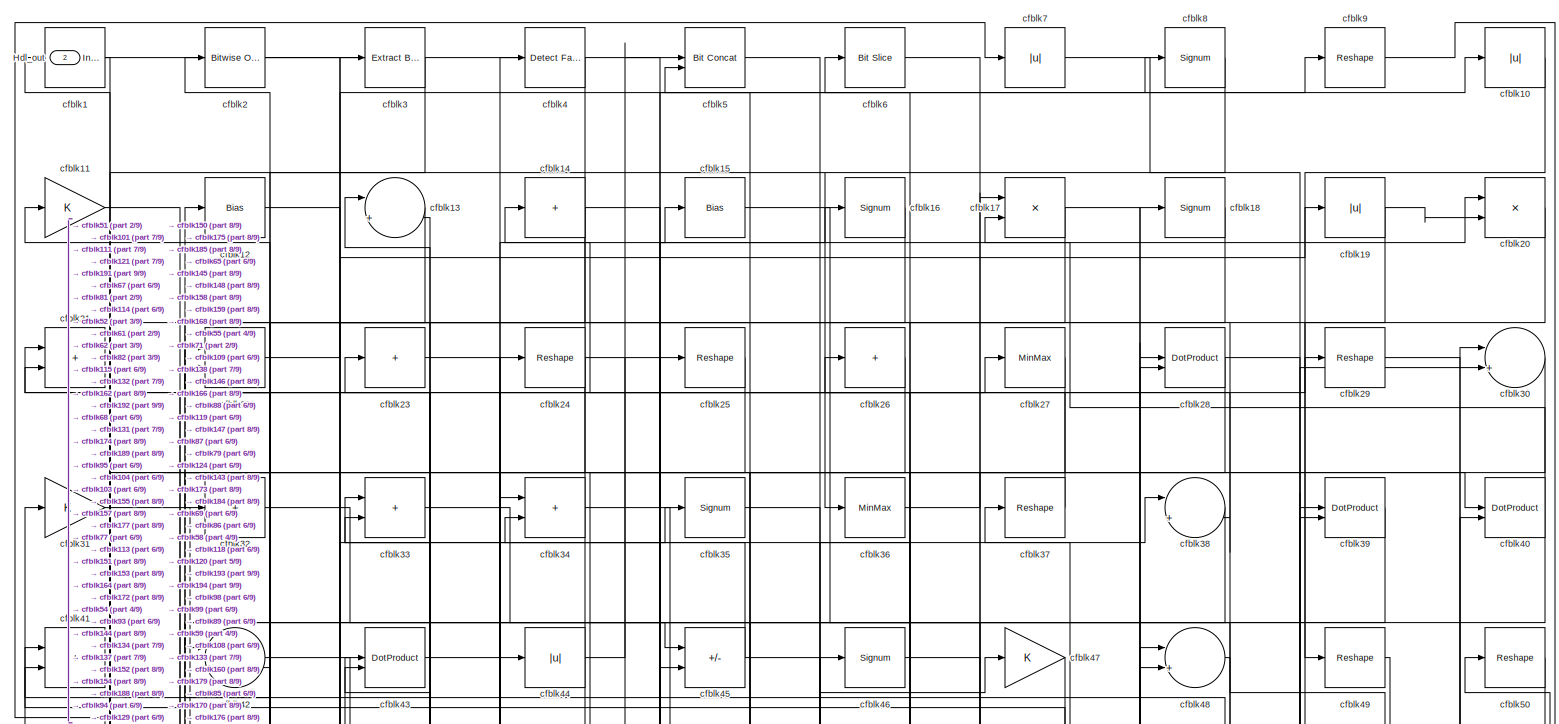
[diagram: root canvas - part 1/9, full width, top band]
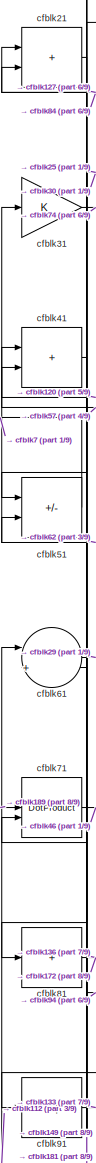
[diagram: root canvas - part 2/9, top left region]
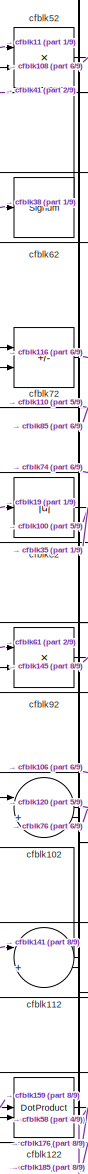
[diagram: root canvas - part 3/9, middle left region]
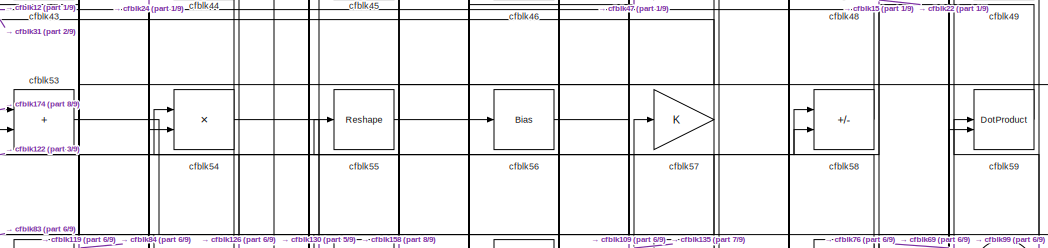
[diagram: root canvas - part 4/9, top center region]
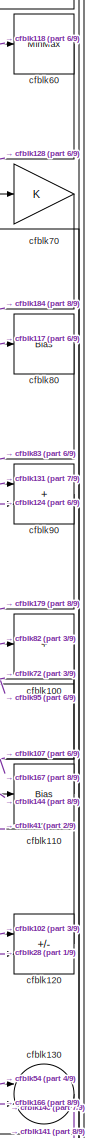
[diagram: root canvas - part 5/9, middle right region]
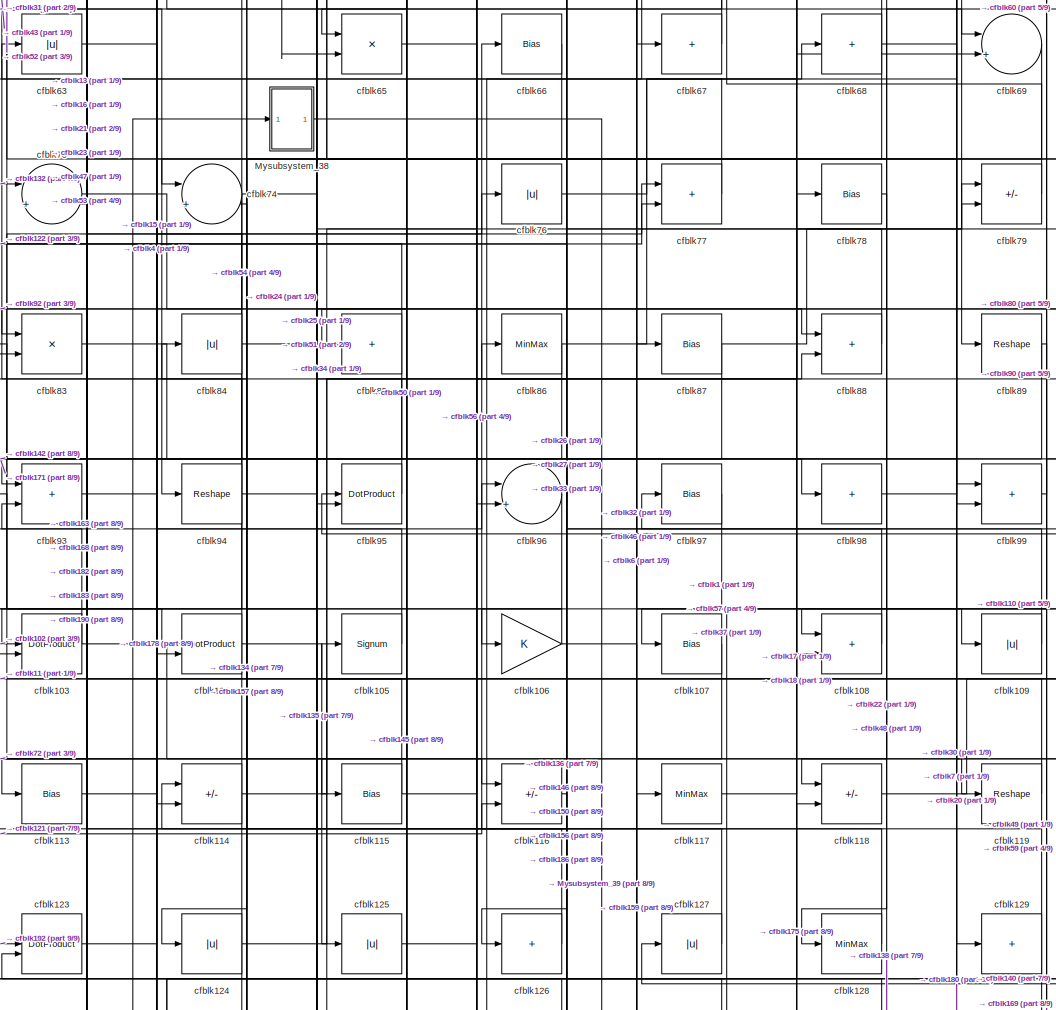
[diagram: root canvas - part 6/9, central region]
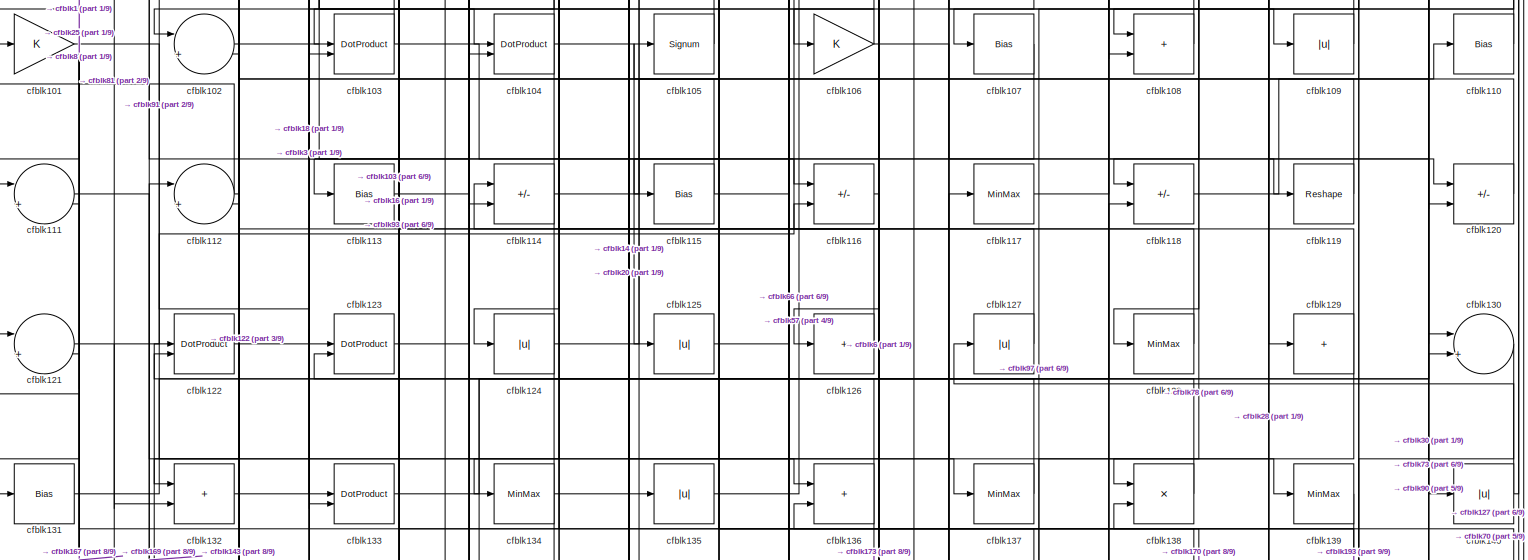
[diagram: root canvas - part 7/9, full width, middle band]
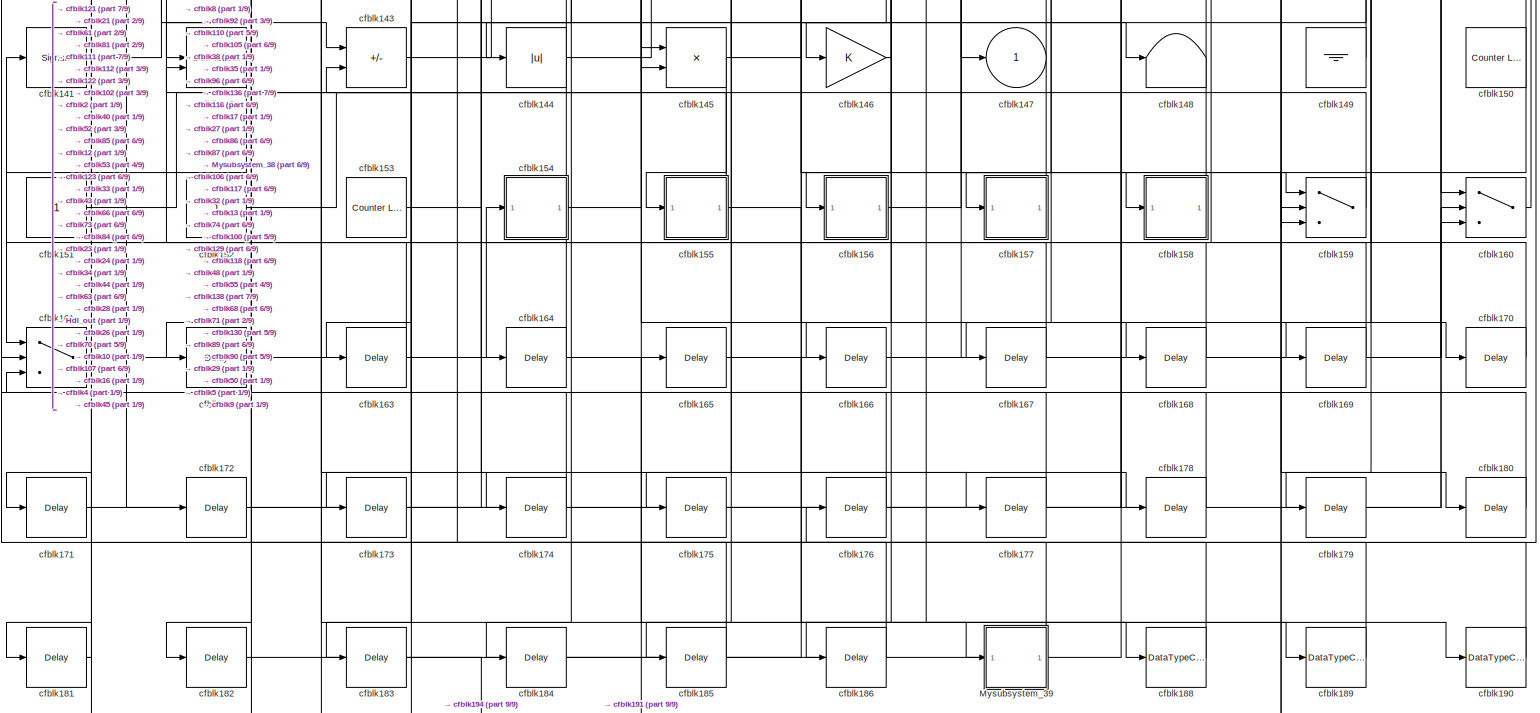
[diagram: root canvas - part 8/9, full width, bottom band]
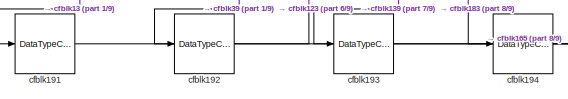
[diagram: root canvas - part 9/9, bottom left region]
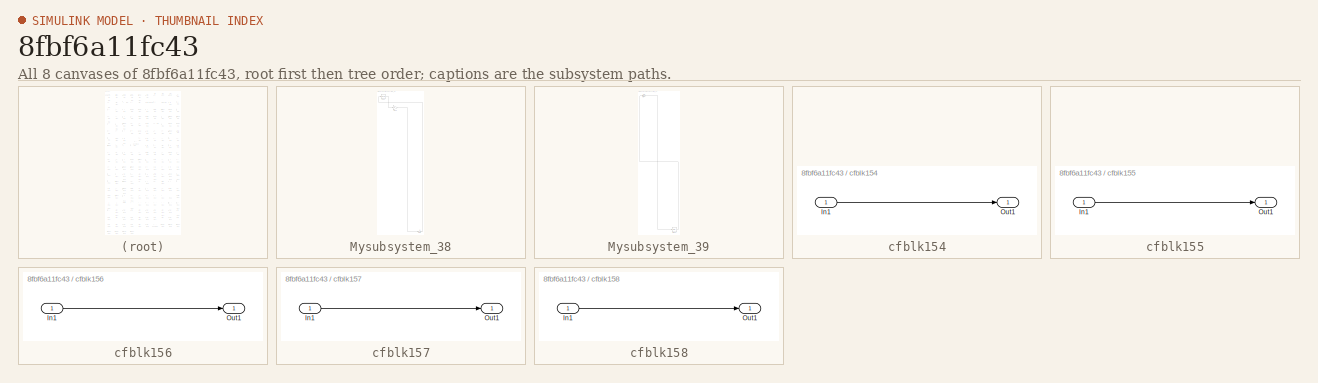
[diagram: thumbnail index - all 8 canvases of the model, root first then tree order]
MODEL slx_8fbf6a11fc43
KIND model
CONFIG AbsTol = auto
CONFIG EnableMultiTasking = off
CONFIG FixedStep = auto
CONFIG MaxStep = auto
CONFIG MinStep = auto
CONFIG RelTol = 1e-3
CONFIG SampleTimeConstraint = Unconstrained
CONFIG SolverName = VariableStepAuto
CONFIG StartTime = 0.0
CONFIG StopTime = 10.0
BLOCK [Outport] Hdl_out
  OutDataTypeStr = uint8
  Port = 2
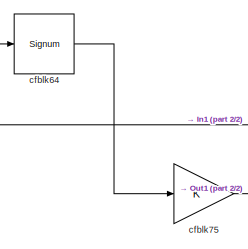
[diagram: Mysubsystem_38 - part 1/2, top left region]
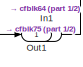
[diagram: Mysubsystem_38 - part 2/2, bottom right region]
BLOCK [SubSystem] Mysubsystem_38
  RTWFcnName = Mysubsystem_38
  RTWFcnNameOpts = User specified
  RTWFileNameOpts = Use function name
  RTWSystemCode = Reusable function
  TreatAsAtomicUnit = on
BLOCK [Inport] Mysubsystem_38/In1
BLOCK [Outport] Mysubsystem_38/Out1
BLOCK [Signum] Mysubsystem_38/cfblk64
BLOCK [Gain] Mysubsystem_38/cfblk75
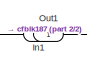
[diagram: Mysubsystem_39 - part 1/2, top left region]
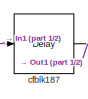
[diagram: Mysubsystem_39 - part 2/2, bottom right region]
BLOCK [SubSystem] Mysubsystem_39
  RTWFcnName = Mysubsystem_39
  RTWFcnNameOpts = User specified
  RTWFileNameOpts = Use function name
  RTWSystemCode = Reusable function
  TreatAsAtomicUnit = on
BLOCK [Inport] Mysubsystem_39/In1
BLOCK [Outport] Mysubsystem_39/Out1
BLOCK [Delay] Mysubsystem_39/cfblk187
  InputPortMap = u0
  SampleTime = 1
BLOCK [Reference] cfblk1  REF=simulink/Logic and Bit
Operations/Detect
Increase
  LibrarySourceBlock = hdlsllib/Logic and Bit\nOperations/Detect\nIncrease
  SourceBlock = simulink/Logic and Bit\nOperations/Detect\nIncrease
  SourceType = Detect Increase
BLOCK [Abs] cfblk10
  OutDataTypeStr = uint8
  SaturateOnIntegerOverflow = off
BLOCK [Sum] cfblk100
  IconShape = rectangular
  Inputs = +
  OutDataTypeStr = uint8
BLOCK [Gain] cfblk101
  OutDataTypeStr = uint8
BLOCK [Sum] cfblk102
  Inputs = |++
  OutDataTypeStr = uint8
BLOCK [DotProduct] cfblk103
  OutDataTypeStr = uint8
BLOCK [DotProduct] cfblk104
  OutDataTypeStr = uint8
BLOCK [Signum] cfblk105
BLOCK [Gain] cfblk106
  OutDataTypeStr = uint8
BLOCK [Bias] cfblk107
  Bias = 0.0
  SaturateOnIntegerOverflow = off
BLOCK [Sum] cfblk108
  IconShape = rectangular
  OutDataTypeStr = uint8
BLOCK [Abs] cfblk109
  OutDataTypeStr = uint8
  SaturateOnIntegerOverflow = off
BLOCK [Gain] cfblk11
  OutDataTypeStr = uint8
BLOCK [Bias] cfblk110
  Bias = 0.0
  SaturateOnIntegerOverflow = off
BLOCK [Sum] cfblk111
  Inputs = |++
  OutDataTypeStr = uint8
BLOCK [Sum] cfblk112
  Inputs = |++
  OutDataTypeStr = uint8
BLOCK [Bias] cfblk113
  Bias = 0.0
  SaturateOnIntegerOverflow = off
BLOCK [Sum] cfblk114
  IconShape = rectangular
  Inputs = +-
  OutDataTypeStr = uint8
BLOCK [Bias] cfblk115
  Bias = 0.0
  SaturateOnIntegerOverflow = off
BLOCK [Sum] cfblk116
  IconShape = rectangular
  Inputs = +-
  OutDataTypeStr = uint8
BLOCK [MinMax] cfblk117
  OutDataTypeStr = uint8
BLOCK [Sum] cfblk118
  IconShape = rectangular
  Inputs = +-
  OutDataTypeStr = uint8
BLOCK [Reshape] cfblk119
BLOCK [Bias] cfblk12
  Bias = 0.0
  SaturateOnIntegerOverflow = off
BLOCK [Sum] cfblk120
  IconShape = rectangular
  Inputs = +-
  OutDataTypeStr = uint8
BLOCK [Sum] cfblk121
  Inputs = |++
  OutDataTypeStr = uint8
BLOCK [DotProduct] cfblk122
  OutDataTypeStr = uint8
BLOCK [DotProduct] cfblk123
  OutDataTypeStr = uint8
BLOCK [Abs] cfblk124
  OutDataTypeStr = uint8
  SaturateOnIntegerOverflow = off
BLOCK [Abs] cfblk125
  OutDataTypeStr = uint8
  SaturateOnIntegerOverflow = off
BLOCK [Sum] cfblk126
  IconShape = rectangular
  Inputs = +
  OutDataTypeStr = uint8
BLOCK [Abs] cfblk127
  OutDataTypeStr = uint8
  SaturateOnIntegerOverflow = off
BLOCK [MinMax] cfblk128
  OutDataTypeStr = uint8
BLOCK [Sum] cfblk129
  IconShape = rectangular
  Inputs = +
  OutDataTypeStr = uint8
BLOCK [Sum] cfblk13
  Inputs = |++
  OutDataTypeStr = uint8
BLOCK [Sum] cfblk130
  Inputs = |++
  OutDataTypeStr = uint8
BLOCK [Bias] cfblk131
  Bias = 0.0
  SaturateOnIntegerOverflow = off
BLOCK [Sum] cfblk132
  IconShape = rectangular
  OutDataTypeStr = uint8
BLOCK [DotProduct] cfblk133
  OutDataTypeStr = uint8
BLOCK [MinMax] cfblk134
  OutDataTypeStr = uint8
BLOCK [Abs] cfblk135
  OutDataTypeStr = uint8
  SaturateOnIntegerOverflow = off
BLOCK [Sum] cfblk136
  IconShape = rectangular
  OutDataTypeStr = uint8
BLOCK [MinMax] cfblk137
  OutDataTypeStr = uint8
BLOCK [Product] cfblk138
  Inputs = */
  OutDataTypeStr = uint8
  RndMeth = Zero
  SaturateOnIntegerOverflow = on
BLOCK [MinMax] cfblk139
  OutDataTypeStr = uint8
BLOCK [Sum] cfblk14
  IconShape = rectangular
  Inputs = +
  OutDataTypeStr = uint8
BLOCK [Abs] cfblk140
  OutDataTypeStr = uint8
  SaturateOnIntegerOverflow = off
BLOCK [Signum] cfblk141
BLOCK [DotProduct] cfblk142
  OutDataTypeStr = uint8
BLOCK [Sum] cfblk143
  IconShape = rectangular
  Inputs = +-
  OutDataTypeStr = uint8
BLOCK [Abs] cfblk144
  OutDataTypeStr = uint8
  SaturateOnIntegerOverflow = off
BLOCK [Product] cfblk145
  Inputs = */
  OutDataTypeStr = uint8
  RndMeth = Zero
  SaturateOnIntegerOverflow = on
BLOCK [Gain] cfblk146
  OutDataTypeStr = uint8
BLOCK [Outport] cfblk147
  OutDataTypeStr = uint8
  VectorParamsAs1DForOutWhenUnconnected = off
BLOCK [Terminator] cfblk148
BLOCK [Ground] cfblk149
BLOCK [Bias] cfblk15
  Bias = 0.0
  SaturateOnIntegerOverflow = off
BLOCK [Reference] cfblk150  REF=hdlsllib/Sources/Counter
Limited
  SourceBlock = hdlsllib/Sources/Counter\nLimited
  SourceType = Counter Limited
BLOCK [Constant] cfblk151
  OutDataTypeStr = uint8
  SampleTime = -1
BLOCK [Constant] cfblk152
  OutDataTypeStr = uint8
  SampleTime = -1
BLOCK [Reference] cfblk153  REF=hdlsllib/Sources/Counter
Limited
  SourceBlock = hdlsllib/Sources/Counter\nLimited
  SourceType = Counter Limited
BLOCK [SubSystem] cfblk154
  LibrarySourceBlock = hdlsllib/Ports &\nSubsystems/Subsystem
BLOCK [Inport] cfblk154/In1
BLOCK [Outport] cfblk154/Out1
BLOCK [SubSystem] cfblk155
  LibrarySourceBlock = hdlsllib/Ports &\nSubsystems/Subsystem
BLOCK [Inport] cfblk155/In1
BLOCK [Outport] cfblk155/Out1
BLOCK [SubSystem] cfblk156
  LibrarySourceBlock = hdlsllib/Ports &\nSubsystems/Subsystem
BLOCK [Inport] cfblk156/In1
BLOCK [Outport] cfblk156/Out1
BLOCK [SubSystem] cfblk157
  LibrarySourceBlock = hdlsllib/Ports &\nSubsystems/Subsystem
BLOCK [Inport] cfblk157/In1
BLOCK [Outport] cfblk157/Out1
BLOCK [SubSystem] cfblk158
  LibrarySourceBlock = hdlsllib/Ports &\nSubsystems/Subsystem
BLOCK [Inport] cfblk158/In1
BLOCK [Outport] cfblk158/Out1
BLOCK [Switch] cfblk159
  InputSameDT = off
  OutDataTypeStr = uint8
  SaturateOnIntegerOverflow = off
BLOCK [Signum] cfblk16
BLOCK [Switch] cfblk160
  InputSameDT = off
  OutDataTypeStr = uint8
  SaturateOnIntegerOverflow = off
BLOCK [Switch] cfblk161
  InputSameDT = off
  OutDataTypeStr = uint8
  SaturateOnIntegerOverflow = off
BLOCK [Delay] cfblk162
  InputPortMap = u0
  SampleTime = 1
BLOCK [Delay] cfblk163
  InputPortMap = u0
  SampleTime = 1
BLOCK [Delay] cfblk164
  InputPortMap = u0
  SampleTime = 1
BLOCK [Delay] cfblk165
  InputPortMap = u0
  SampleTime = 1
BLOCK [Delay] cfblk166
  InputPortMap = u0
  SampleTime = 1
BLOCK [Delay] cfblk167
  InputPortMap = u0
  SampleTime = 1
BLOCK [Delay] cfblk168
  InputPortMap = u0
  SampleTime = 1
BLOCK [Delay] cfblk169
  InputPortMap = u0
  SampleTime = 1
BLOCK [Product] cfblk17
  Inputs = */
  OutDataTypeStr = uint8
  RndMeth = Zero
  SaturateOnIntegerOverflow = on
BLOCK [Delay] cfblk170
  InputPortMap = u0
  SampleTime = 1
BLOCK [Delay] cfblk171
  InputPortMap = u0
  SampleTime = 1
BLOCK [Delay] cfblk172
  InputPortMap = u0
  SampleTime = 1
BLOCK [Delay] cfblk173
  InputPortMap = u0
  SampleTime = 1
BLOCK [Delay] cfblk174
  InputPortMap = u0
  SampleTime = 1
BLOCK [Delay] cfblk175
  InputPortMap = u0
  SampleTime = 1
BLOCK [Delay] cfblk176
  InputPortMap = u0
  SampleTime = 1
BLOCK [Delay] cfblk177
  InputPortMap = u0
  SampleTime = 1
BLOCK [Delay] cfblk178
  InputPortMap = u0
  SampleTime = 1
BLOCK [Delay] cfblk179
  InputPortMap = u0
  SampleTime = 1
BLOCK [Signum] cfblk18
BLOCK [Delay] cfblk180
  InputPortMap = u0
  SampleTime = 1
BLOCK [Delay] cfblk181
  InputPortMap = u0
  SampleTime = 1
BLOCK [Delay] cfblk182
  InputPortMap = u0
  SampleTime = 1
BLOCK [Delay] cfblk183
  InputPortMap = u0
  SampleTime = 1
BLOCK [Delay] cfblk184
  InputPortMap = u0
  SampleTime = 1
BLOCK [Delay] cfblk185
  InputPortMap = u0
  SampleTime = 1
BLOCK [Delay] cfblk186
  InputPortMap = u0
  SampleTime = 1
BLOCK [DataTypeConversion] cfblk188
  OutDataTypeStr = uint8
  RndMeth = Floor
  SaturateOnIntegerOverflow = off
BLOCK [DataTypeConversion] cfblk189
  OutDataTypeStr = uint8
  RndMeth = Floor
  SaturateOnIntegerOverflow = off
BLOCK [Abs] cfblk19
  OutDataTypeStr = uint8
  SaturateOnIntegerOverflow = off
BLOCK [DataTypeConversion] cfblk190
  OutDataTypeStr = uint8
  RndMeth = Floor
  SaturateOnIntegerOverflow = off
BLOCK [DataTypeConversion] cfblk191
  OutDataTypeStr = uint8
  RndMeth = Floor
  SaturateOnIntegerOverflow = off
BLOCK [DataTypeConversion] cfblk192
  OutDataTypeStr = uint8
  RndMeth = Floor
  SaturateOnIntegerOverflow = off
BLOCK [DataTypeConversion] cfblk193
  OutDataTypeStr = uint8
  RndMeth = Floor
  SaturateOnIntegerOverflow = off
BLOCK [DataTypeConversion] cfblk194
  OutDataTypeStr = uint8
  RndMeth = Floor
  SaturateOnIntegerOverflow = off
BLOCK [Reference] cfblk2  REF=simulink/Logic and Bit
Operations/Bitwise
Operator
  LibrarySourceBlock = hdlsllib/Logic and Bit\nOperations/Bitwise\nOperator
  SourceBlock = simulink/Logic and Bit\nOperations/Bitwise\nOperator
  SourceType = Bitwise Operator
BLOCK [Product] cfblk20
  Inputs = */
  OutDataTypeStr = uint8
  RndMeth = Zero
  SaturateOnIntegerOverflow = on
BLOCK [Sum] cfblk21
  IconShape = rectangular
  OutDataTypeStr = uint8
BLOCK [Sum] cfblk22
  IconShape = rectangular
  OutDataTypeStr = uint8
BLOCK [Sum] cfblk23
  IconShape = rectangular
  Inputs = +
  OutDataTypeStr = uint8
BLOCK [Reshape] cfblk24
BLOCK [Reshape] cfblk25
BLOCK [Sum] cfblk26
  IconShape = rectangular
  Inputs = +
  OutDataTypeStr = uint8
BLOCK [MinMax] cfblk27
  OutDataTypeStr = uint8
BLOCK [DotProduct] cfblk28
  OutDataTypeStr = uint8
BLOCK [Reshape] cfblk29
BLOCK [Reference] cfblk3  REF=simulink/Logic and Bit
Operations/Extract Bits
  LibrarySourceBlock = hdlsllib/Logic and Bit\nOperations/Extract Bits
  SourceBlock = simulink/Logic and Bit\nOperations/Extract Bits
  SourceType = Extract Bits
BLOCK [Sum] cfblk30
  Inputs = |++
  OutDataTypeStr = uint8
BLOCK [Gain] cfblk31
  OutDataTypeStr = uint8
BLOCK [Sum] cfblk32
  IconShape = rectangular
  Inputs = +
  OutDataTypeStr = uint8
BLOCK [Sum] cfblk33
  IconShape = rectangular
  OutDataTypeStr = uint8
BLOCK [Sum] cfblk34
  IconShape = rectangular
  OutDataTypeStr = uint8
BLOCK [Signum] cfblk35
BLOCK [MinMax] cfblk36
  OutDataTypeStr = uint8
BLOCK [Reshape] cfblk37
BLOCK [Sum] cfblk38
  Inputs = |++
  OutDataTypeStr = uint8
BLOCK [DotProduct] cfblk39
  OutDataTypeStr = uint8
BLOCK [Reference] cfblk4  REF=hdlsllib/Logic and Bit
Operations/Detect Fall
Nonpositive
  SourceBlock = hdlsllib/Logic and Bit\nOperations/Detect Fall\nNonpositive
  SourceType = Detect Fall Nonpositive
BLOCK [DotProduct] cfblk40
  OutDataTypeStr = uint8
BLOCK [Sum] cfblk41
  IconShape = rectangular
  OutDataTypeStr = uint8
BLOCK [Sum] cfblk42
  Inputs = |++
  OutDataTypeStr = uint8
BLOCK [DotProduct] cfblk43
  OutDataTypeStr = uint8
BLOCK [Abs] cfblk44
  OutDataTypeStr = uint8
  SaturateOnIntegerOverflow = off
BLOCK [Sum] cfblk45
  IconShape = rectangular
  Inputs = +-
  OutDataTypeStr = uint8
BLOCK [Signum] cfblk46
BLOCK [Gain] cfblk47
  OutDataTypeStr = uint8
BLOCK [Sum] cfblk48
  Inputs = |++
  OutDataTypeStr = uint8
BLOCK [Reshape] cfblk49
BLOCK [Reference] cfblk5  REF=hdlsllib/Logic and Bit
Operations/Bit Concat
  SourceBlock = hdlsllib/Logic and Bit\nOperations/Bit Concat
  SourceType = Bit Concat
BLOCK [Reshape] cfblk50
BLOCK [Sum] cfblk51
  IconShape = rectangular
  Inputs = +-
  OutDataTypeStr = uint8
BLOCK [Product] cfblk52
  Inputs = */
  OutDataTypeStr = uint8
  RndMeth = Zero
  SaturateOnIntegerOverflow = on
BLOCK [Sum] cfblk53
  IconShape = rectangular
  OutDataTypeStr = uint8
BLOCK [Product] cfblk54
  Inputs = */
  OutDataTypeStr = uint8
  RndMeth = Zero
  SaturateOnIntegerOverflow = on
BLOCK [Reshape] cfblk55
BLOCK [Bias] cfblk56
  Bias = 0.0
  SaturateOnIntegerOverflow = off
BLOCK [Gain] cfblk57
  OutDataTypeStr = uint8
BLOCK [Sum] cfblk58
  IconShape = rectangular
  Inputs = +-
  OutDataTypeStr = uint8
BLOCK [DotProduct] cfblk59
  OutDataTypeStr = uint8
BLOCK [Reference] cfblk6  REF=hdlsllib/Logic and Bit
Operations/Bit Slice
  SourceBlock = hdlsllib/Logic and Bit\nOperations/Bit Slice
  SourceType = Bit Slice
BLOCK [MinMax] cfblk60
  OutDataTypeStr = uint8
BLOCK [Sum] cfblk61
  Inputs = |++
  OutDataTypeStr = uint8
BLOCK [Signum] cfblk62
BLOCK [Abs] cfblk63
  OutDataTypeStr = uint8
  SaturateOnIntegerOverflow = off
BLOCK [Product] cfblk65
  Inputs = */
  OutDataTypeStr = uint8
  RndMeth = Zero
  SaturateOnIntegerOverflow = on
BLOCK [Bias] cfblk66
  Bias = 0.0
  SaturateOnIntegerOverflow = off
BLOCK [Sum] cfblk67
  IconShape = rectangular
  Inputs = +
  OutDataTypeStr = uint8
BLOCK [Sum] cfblk68
  IconShape = rectangular
  Inputs = +
  OutDataTypeStr = uint8
BLOCK [Sum] cfblk69
  Inputs = |++
  OutDataTypeStr = uint8
BLOCK [Abs] cfblk7
  OutDataTypeStr = uint8
  SaturateOnIntegerOverflow = off
BLOCK [Gain] cfblk70
  OutDataTypeStr = uint8
BLOCK [DotProduct] cfblk71
  OutDataTypeStr = uint8
BLOCK [Sum] cfblk72
  IconShape = rectangular
  Inputs = +-
  OutDataTypeStr = uint8
BLOCK [Sum] cfblk73
  Inputs = |++
  OutDataTypeStr = uint8
BLOCK [Sum] cfblk74
  Inputs = |++
  OutDataTypeStr = uint8
BLOCK [Abs] cfblk76
  OutDataTypeStr = uint8
  SaturateOnIntegerOverflow = off
BLOCK [Sum] cfblk77
  IconShape = rectangular
  OutDataTypeStr = uint8
BLOCK [Bias] cfblk78
  Bias = 0.0
  SaturateOnIntegerOverflow = off
BLOCK [Sum] cfblk79
  IconShape = rectangular
  Inputs = +-
  OutDataTypeStr = uint8
BLOCK [Signum] cfblk8
BLOCK [Bias] cfblk80
  Bias = 0.0
  SaturateOnIntegerOverflow = off
BLOCK [Sum] cfblk81
  IconShape = rectangular
  Inputs = +
  OutDataTypeStr = uint8
BLOCK [Abs] cfblk82
  OutDataTypeStr = uint8
  SaturateOnIntegerOverflow = off
BLOCK [Product] cfblk83
  Inputs = */
  OutDataTypeStr = uint8
  RndMeth = Zero
  SaturateOnIntegerOverflow = on
BLOCK [Abs] cfblk84
  OutDataTypeStr = uint8
  SaturateOnIntegerOverflow = off
BLOCK [Sum] cfblk85
  IconShape = rectangular
  Inputs = +
  OutDataTypeStr = uint8
BLOCK [MinMax] cfblk86
  OutDataTypeStr = uint8
BLOCK [Bias] cfblk87
  Bias = 0.0
  SaturateOnIntegerOverflow = off
BLOCK [Sum] cfblk88
  IconShape = rectangular
  OutDataTypeStr = uint8
BLOCK [Reshape] cfblk89
BLOCK [Reshape] cfblk9
BLOCK [Sum] cfblk90
  IconShape = rectangular
  OutDataTypeStr = uint8
BLOCK [Abs] cfblk91
  OutDataTypeStr = uint8
  SaturateOnIntegerOverflow = off
BLOCK [Product] cfblk92
  Inputs = */
  OutDataTypeStr = uint8
  RndMeth = Zero
  SaturateOnIntegerOverflow = on
BLOCK [Sum] cfblk93
  IconShape = rectangular
  OutDataTypeStr = uint8
BLOCK [Reshape] cfblk94
BLOCK [DotProduct] cfblk95
  OutDataTypeStr = uint8
BLOCK [Sum] cfblk96
  Inputs = |++
  OutDataTypeStr = uint8
BLOCK [Bias] cfblk97
  Bias = 0.0
  SaturateOnIntegerOverflow = off
BLOCK [Sum] cfblk98
  IconShape = rectangular
  Inputs = +
  OutDataTypeStr = uint8
BLOCK [Sum] cfblk99
  IconShape = rectangular
  OutDataTypeStr = uint8
LINE Mysubsystem_38/In1:1 -> Mysubsystem_38/cfblk64:1
LINE Mysubsystem_38/cfblk64:1 -> Mysubsystem_38/cfblk75:1
LINE Mysubsystem_38/cfblk75:1 -> Mysubsystem_38/Out1:1
LINE Mysubsystem_38:1 -> Mysubsystem_39:1
LINE Mysubsystem_39/In1:1 -> Mysubsystem_39/cfblk187:1
LINE Mysubsystem_39/cfblk187:1 -> Mysubsystem_39/Out1:1
LINE Mysubsystem_39:1 -> Mysubsystem_38:1
LINE cfblk100:1 -> cfblk167:1
LINE cfblk101:1 -> cfblk139:1
NET cfblk102:1 -> cfblk120:1, cfblk76:1
NET cfblk103:1 -> cfblk135:1, cfblk42:2
LINE cfblk104:1 -> cfblk125:1
LINE cfblk105:1 -> cfblk63:1
NET cfblk106:1 -> cfblk102:1, cfblk159:3
LINE cfblk107:1 -> cfblk145:2
LINE cfblk108:1 -> cfblk97:1
LINE cfblk109:1 -> cfblk33:1
LINE cfblk10:1 -> cfblk49:1
NET cfblk110:1 -> cfblk107:1, cfblk72:2, cfblk95:1
LINE cfblk111:1 -> cfblk143:1
NET cfblk112:1 -> cfblk61:1, cfblk92:1
LINE cfblk113:1 -> cfblk4:1
LINE cfblk114:1 -> cfblk78:1
NET cfblk115:1 -> cfblk11:1, cfblk88:2
LINE cfblk116:1 -> cfblk156:1
LINE cfblk117:1 -> cfblk80:1
LINE cfblk118:1 -> cfblk60:1
LINE cfblk119:1 -> cfblk53:2
NET cfblk11:1 -> cfblk114:2, cfblk52:1
LINE cfblk120:1 -> cfblk41:1
NET cfblk121:1 -> cfblk132:2, cfblk66:1
NET cfblk122:1 -> cfblk58:2, cfblk77:1
LINE cfblk123:1 -> cfblk96:1
NET cfblk124:1 -> cfblk18:1, cfblk90:2
LINE cfblk125:1 -> cfblk68:1
LINE cfblk126:1 -> cfblk54:1
NET cfblk127:1 -> cfblk21:1, cfblk84:1
LINE cfblk128:1 -> cfblk114:1
NET cfblk129:1 -> cfblk157:1, cfblk23:1
LINE cfblk12:1 -> cfblk174:1
LINE cfblk130:1 -> cfblk141:1
NET cfblk131:1 -> cfblk3:1, cfblk90:1
LINE cfblk132:1 -> cfblk73:1
LINE cfblk133:1 -> cfblk30:1
LINE cfblk134:1 -> cfblk20:1
LINE cfblk135:1 -> cfblk57:1
NET cfblk136:1 -> cfblk173:1, cfblk93:2
LINE cfblk137:1 -> cfblk122:2
LINE cfblk138:1 -> cfblk6:1
NET cfblk139:1 -> cfblk136:2, cfblk193:1
LINE cfblk13:1 -> cfblk191:1
NET cfblk140:1 -> cfblk127:1, cfblk70:1
LINE cfblk141:1 -> cfblk112:1
NET cfblk142:1 -> cfblk161:1, cfblk52:2
LINE cfblk143:1 -> cfblk28:1
LINE cfblk144:1 -> cfblk110:1
NET cfblk145:1 -> cfblk105:1, cfblk155:1, cfblk38:1
LINE cfblk146:1 -> cfblk86:1
LINE cfblk149:1 -> cfblk71:2
NET cfblk14:1 -> cfblk137:1, cfblk42:1
NET cfblk150:1 -> cfblk116:2, cfblk159:2, cfblk5:2
LINE cfblk151:1 -> cfblk24:1
LINE cfblk152:1 -> cfblk45:2
LINE cfblk153:1 -> cfblk44:1
LINE cfblk154/In1:1 -> cfblk154/Out1:1
NET cfblk154:1 -> cfblk10:1, cfblk16:1, cfblk8:1
LINE cfblk155/In1:1 -> cfblk155/Out1:1
NET cfblk155:1 -> cfblk177:1, cfblk43:2
LINE cfblk156/In1:1 -> cfblk156/Out1:1
LINE cfblk156:1 -> cfblk117:1
LINE cfblk157/In1:1 -> cfblk157/Out1:1
NET cfblk157:1 -> cfblk13:1, cfblk74:2
LINE cfblk158/In1:1 -> cfblk158/Out1:1
LINE cfblk158:1 -> cfblk55:1
LINE cfblk159:1 -> cfblk122:1
LINE cfblk15:1 -> cfblk58:1
LINE cfblk160:1 -> cfblk50:1
LINE cfblk161:1 -> cfblk154:1
LINE cfblk162:1 -> cfblk160:2
LINE cfblk163:1 -> cfblk142:2
NET cfblk164:1 -> Hdl_out:1, cfblk17:1
LINE cfblk165:1 -> cfblk190:1
LINE cfblk166:1 -> cfblk130:2
LINE cfblk167:1 -> cfblk111:2
LINE cfblk168:1 -> cfblk73:2
LINE cfblk169:1 -> cfblk121:1
NET cfblk16:1 -> cfblk103:1, cfblk132:1
LINE cfblk170:1 -> cfblk138:2
LINE cfblk171:1 -> cfblk160:3
LINE cfblk172:1 -> cfblk34:1
LINE cfblk173:1 -> cfblk28:2
LINE cfblk174:1 -> cfblk53:1
LINE cfblk175:1 -> cfblk118:2
LINE cfblk176:1 -> cfblk112:2
LINE cfblk177:1 -> cfblk33:2
LINE cfblk178:1 -> cfblk143:2
LINE cfblk179:1 -> cfblk40:2
NET cfblk17:1 -> cfblk146:1, cfblk69:2
LINE cfblk180:1 -> cfblk161:2
LINE cfblk181:1 -> cfblk61:2
LINE cfblk182:1 -> cfblk96:2
LINE cfblk183:1 -> cfblk194:1
LINE cfblk184:1 -> cfblk48:1
LINE cfblk185:1 -> cfblk102:2
LINE cfblk186:1 -> cfblk161:3
LINE cfblk188:1 -> cfblk2:1
LINE cfblk189:1 -> cfblk71:1
LINE cfblk18:1 -> cfblk133:2
LINE cfblk190:1 -> cfblk123:2
LINE cfblk191:1 -> cfblk165:1
LINE cfblk192:1 -> cfblk123:1
LINE cfblk193:1 -> cfblk39:1
LINE cfblk194:1 -> cfblk39:2
NET cfblk19:1 -> cfblk20:2, cfblk38:2, cfblk82:1
LINE cfblk1:1 -> cfblk101:1
LINE cfblk20:1 -> cfblk89:1
LINE cfblk21:1 -> cfblk181:1
NET cfblk22:1 -> cfblk19:1, cfblk9:1
LINE cfblk23:1 -> cfblk164:1
NET cfblk24:1 -> cfblk188:1, cfblk54:2, cfblk65:2
NET cfblk25:1 -> cfblk111:1, cfblk51:1
LINE cfblk26:1 -> cfblk144:1
NET cfblk27:1 -> cfblk166:1, cfblk65:1
NET cfblk28:1 -> cfblk120:2, cfblk121:2, cfblk185:1
LINE cfblk29:1 -> cfblk160:1
LINE cfblk2:1 -> cfblk189:1
LINE cfblk30:1 -> cfblk81:1
LINE cfblk31:1 -> cfblk74:1
NET cfblk32:1 -> cfblk147:1, cfblk87:1
LINE cfblk33:1 -> cfblk45:1
LINE cfblk34:1 -> cfblk129:1
LINE cfblk35:1 -> cfblk168:1
LINE cfblk36:1 -> cfblk40:1
LINE cfblk37:1 -> cfblk14:1
NET cfblk38:1 -> cfblk175:1, cfblk62:1
LINE cfblk39:1 -> cfblk192:1
LINE cfblk3:1 -> cfblk32:1
NET cfblk40:1 -> cfblk162:1, cfblk17:2
LINE cfblk41:1 -> cfblk91:1
LINE cfblk42:1 -> cfblk104:1
LINE cfblk43:1 -> cfblk27:1
LINE cfblk44:1 -> cfblk5:1
NET cfblk45:1 -> cfblk158:1, cfblk34:2
LINE cfblk46:1 -> cfblk67:1
LINE cfblk47:1 -> cfblk93:1
LINE cfblk48:1 -> cfblk118:1
LINE cfblk49:1 -> cfblk108:1
LINE cfblk4:1 -> cfblk170:1
NET cfblk50:1 -> cfblk115:1, cfblk85:1
LINE cfblk51:1 -> cfblk7:1
LINE cfblk52:1 -> cfblk108:2
LINE cfblk53:1 -> cfblk69:1
LINE cfblk54:1 -> cfblk130:1
LINE cfblk55:1 -> cfblk47:1
LINE cfblk56:1 -> cfblk109:1
NET cfblk57:1 -> cfblk31:1, cfblk83:2
LINE cfblk58:1 -> cfblk12:1
LINE cfblk59:1 -> cfblk22:1
NET cfblk5:1 -> cfblk148:1, cfblk159:1
LINE cfblk60:1 -> cfblk128:1
LINE cfblk61:1 -> cfblk29:1
LINE cfblk62:1 -> cfblk41:2
LINE cfblk63:1 -> cfblk178:1
LINE cfblk65:1 -> cfblk99:2
LINE cfblk66:1 -> cfblk163:1
LINE cfblk67:1 -> cfblk1:1
NET cfblk68:1 -> cfblk124:1, cfblk180:1, cfblk22:2
LINE cfblk69:1 -> cfblk94:1
LINE cfblk6:1 -> cfblk119:1
LINE cfblk70:1 -> cfblk184:1
LINE cfblk71:1 -> cfblk46:1
LINE cfblk72:1 -> cfblk116:1
LINE cfblk73:1 -> cfblk140:1
NET cfblk74:1 -> cfblk88:1, cfblk92:2
NET cfblk76:1 -> cfblk126:1, cfblk59:2
LINE cfblk77:1 -> cfblk13:2
LINE cfblk78:1 -> cfblk138:1
LINE cfblk79:1 -> cfblk37:1
LINE cfblk7:1 -> cfblk99:1
LINE cfblk80:1 -> cfblk83:1
NET cfblk81:1 -> cfblk136:1, cfblk172:1
NET cfblk82:1 -> cfblk100:1, cfblk35:1
NET cfblk83:1 -> cfblk77:2, cfblk98:1
NET cfblk84:1 -> cfblk182:1, cfblk183:1, cfblk21:2, cfblk56:1, cfblk79:2
NET cfblk85:1 -> cfblk142:1, cfblk72:1, cfblk95:2
NET cfblk86:1 -> cfblk104:2, cfblk48:2
NET cfblk87:1 -> cfblk186:1, cfblk79:1
LINE cfblk88:1 -> cfblk26:1
NET cfblk89:1 -> cfblk113:1, cfblk169:1, cfblk171:1
NET cfblk8:1 -> cfblk131:1, cfblk36:1
LINE cfblk90:1 -> cfblk179:1
LINE cfblk91:1 -> cfblk133:1
LINE cfblk92:1 -> cfblk145:1
LINE cfblk93:1 -> cfblk15:1
NET cfblk94:1 -> cfblk103:2, cfblk25:1, cfblk51:2
LINE cfblk95:1 -> cfblk43:1
LINE cfblk96:1 -> cfblk106:1
LINE cfblk97:1 -> cfblk134:1
LINE cfblk98:1 -> cfblk30:2
LINE cfblk99:1 -> cfblk59:1
LINE cfblk9:1 -> cfblk176:1
note: NET lines group one-source signal fan-out (src -> all destinations, sorted); 1:1 wires keep LINE
